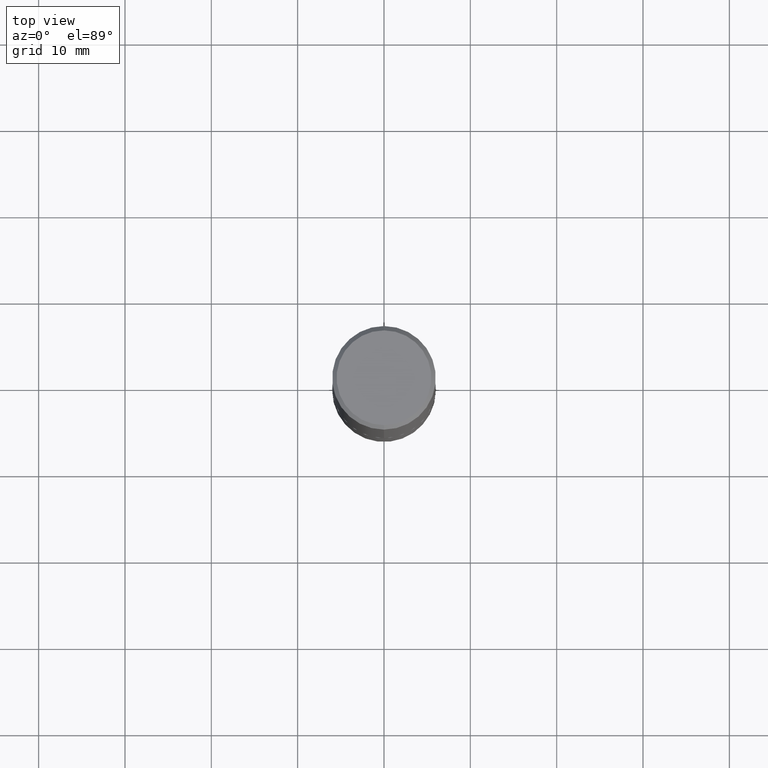
[diagram: clean part render]
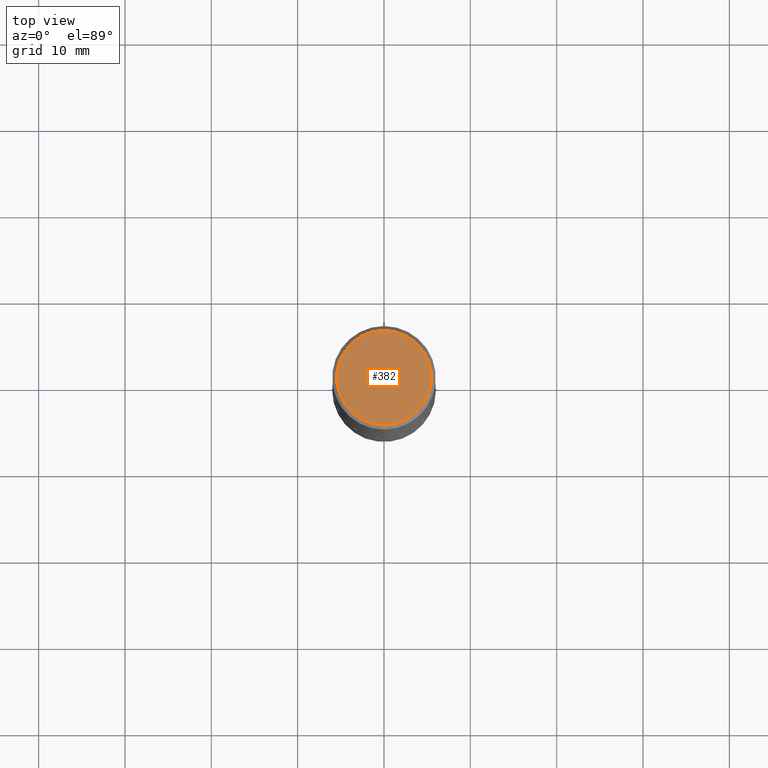
[diagram: same view with one face highlighted and labeled with its STEP entity id]
A machine part, top view. The second image highlights one B-rep face of the part: STEP entity #382.
In plain terms, the highlighted planar face has unit normal (0, -0, -1).
Its self-contained STEP definition (entity closure, byte-faithful):
#16 = AXIS2_PLACEMENT_3D ( 'NONE', #51, #235, #205 ) ;
#34 = EDGE_LOOP ( 'NONE', ( #46, #400 ) ) ;
#46 = ORIENTED_EDGE ( 'NONE', *, *, #151, .T. ) ;
#51 = CARTESIAN_POINT ( 'NONE',  ( 1.509716530915770323E-15, 0.2161999999999999478, -7.122113769277070896E-16 ) ) ;
#58 = CIRCLE ( 'NONE', #300, 0.2161999999999999478 ) ;
#66 = DIRECTION ( 'NONE',  ( -2.445221809746292518E-29, 3.491835051801734308E-15, 1.000000000000000000 ) ) ;
#70 = EDGE_CURVE ( 'NONE', #94, #88, #58, .T. ) ;
#76 = FACE_OUTER_BOUND ( 'NONE', #34, .T. ) ;
#88 = VERTEX_POINT ( 'NONE', #192 ) ;
#94 = VERTEX_POINT ( 'NONE', #378 ) ;
#101 = CARTESIAN_POINT ( 'NONE',  ( -2.089361895350857775E-45, 2.983658608395124733E-31, 8.544672254365514246E-17 ) ) ;
#141 = DIRECTION ( 'NONE',  ( -2.445221809746292518E-29, 3.491835051801734308E-15, 1.000000000000000000 ) ) ;
#151 = EDGE_CURVE ( 'NONE', #88, #94, #366, .T. ) ;
#164 = AXIS2_PLACEMENT_3D ( 'NONE', #101, #141, #231 ) ;
#192 = CARTESIAN_POINT ( 'NONE',  ( 1.579546157692633621E-15, 0.2161999999999999478, -6.694880156558795861E-16 ) ) ;
#197 = DIRECTION ( 'NONE',  ( -6.982962677686265922E-15, -1.000000000000000000, 3.491835051801733913E-15 ) ) ;
#205 = DIRECTION ( 'NONE',  ( 6.982962677686265922E-15, 1.000000000000000000, -3.491835051801734702E-15 ) ) ;
#222 = CARTESIAN_POINT ( 'NONE',  ( -2.089361895350857775E-45, 2.983658608395124733E-31, 8.544672254365514246E-17 ) ) ;
#231 = DIRECTION ( 'NONE',  ( -6.982962677686265922E-15, -1.000000000000000000, 3.491835051801733913E-15 ) ) ;
#235 = DIRECTION ( 'NONE',  ( 2.445221809746291958E-29, -3.491835051801734702E-15, -1.000000000000000000 ) ) ;
#300 = AXIS2_PLACEMENT_3D ( 'NONE', #222, #66, #197 ) ;
#339 = PLANE ( 'NONE',  #16 ) ;
#366 = CIRCLE ( 'NONE', #164, 0.2161999999999999478 ) ;
#378 = CARTESIAN_POINT ( 'NONE',  ( -1.551844647095920142E-15, -0.2161999999999999478, 8.403814607431897971E-16 ) ) ;
#382 = ADVANCED_FACE ( 'NONE', ( #76 ), #339, .F. ) ;
#400 = ORIENTED_EDGE ( 'NONE', *, *, #70, .T. ) ;